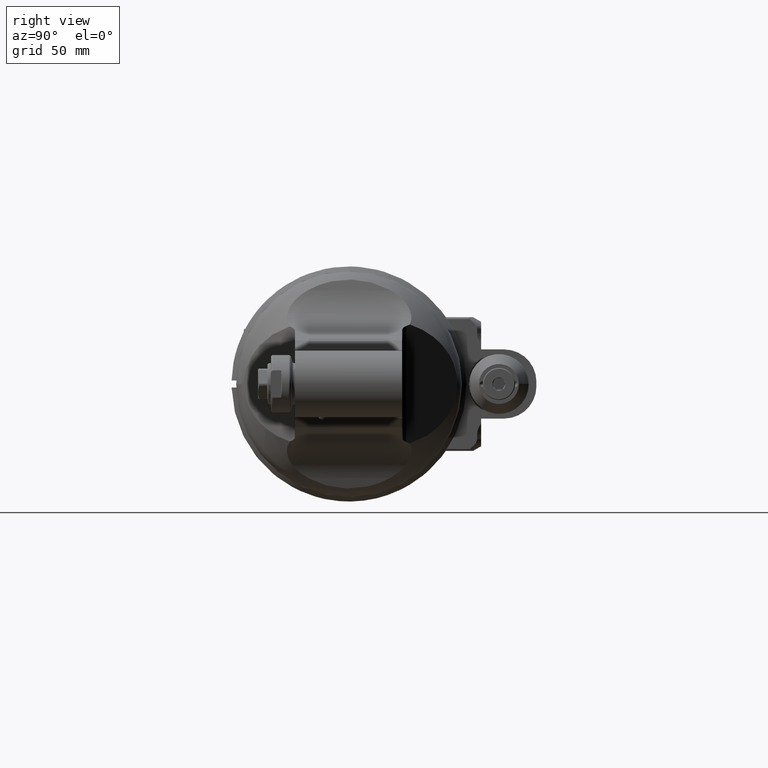
[diagram: clean part render]
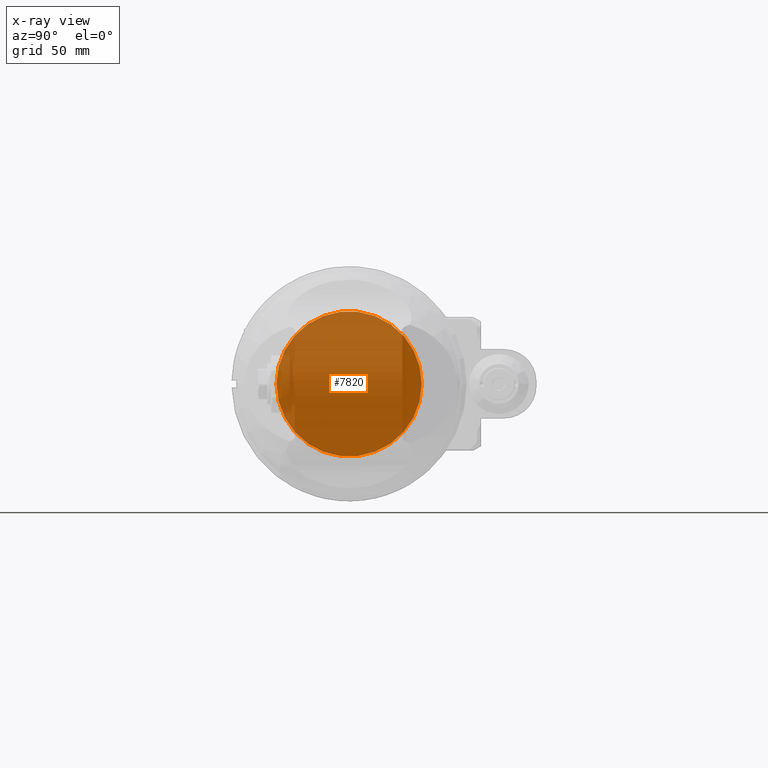
[diagram: x-ray — body ghosted, one internal face saturated and labeled with its STEP entity id]
A machine part, right view, then the same camera in x-ray: the body is ghosted and one INTERNAL B-rep face — a face not visible from any outside direction — is saturated and labeled: STEP entity #7820.
In plain terms, the highlighted planar face has unit normal (-1, -0, 0).
Its self-contained STEP definition (entity closure, byte-faithful):
#657=CIRCLE('',#8425,1.24015748031496);
#1031=FACE_OUTER_BOUND('',#1542,.T.);
#1542=EDGE_LOOP('',(#5390));
#3297=VERTEX_POINT('',#11911);
#4117=EDGE_CURVE('',#3297,#3297,#657,.T.);
#5390=ORIENTED_EDGE('',*,*,#4117,.T.);
#7581=PLANE('',#8426);
#7820=ADVANCED_FACE('',(#1031),#7581,.T.);
#8425=AXIS2_PLACEMENT_3D('',#11913,#9460,#9461);
#8426=AXIS2_PLACEMENT_3D('',#11914,#9462,#9463);
#9460=DIRECTION('center_axis',(-1.,0.,0.));
#9461=DIRECTION('ref_axis',(0.,-1.,0.));
#9462=DIRECTION('center_axis',(-1.,0.,0.));
#9463=DIRECTION('ref_axis',(0.,1.,0.));
#11911=CARTESIAN_POINT('',(-0.590551181102362,1.24015748031496,0.));
#11913=CARTESIAN_POINT('Origin',(-0.590551181102362,0.,0.));
#11914=CARTESIAN_POINT('Origin',(-0.590551181102362,1.21062992125984,0.));